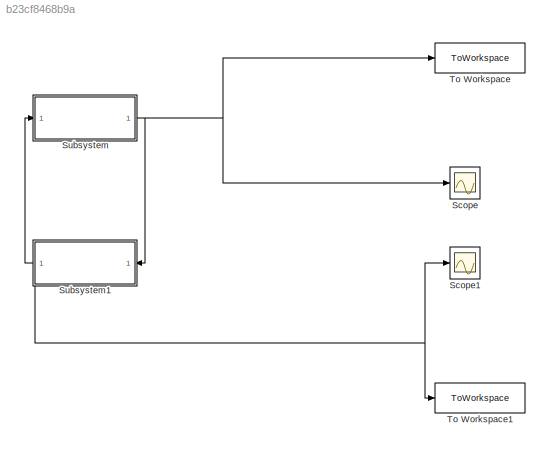
MODEL slx_b23cf8468b9a
KIND model
CONFIG AbsTol = auto
CONFIG EnableMultiTasking = off
CONFIG FixedStep = auto
CONFIG MaxStep = auto
CONFIG MinStep = auto
CONFIG RelTol = 1e-3
CONFIG SampleTimeConstraint = Unconstrained
CONFIG SolverName = VariableStepAuto
CONFIG StartTime = 0.0
CONFIG StopTime = 10.0
BLOCK [Scope] Scope
  Floating = off
  NumInputPorts = 1
  Ports = [1]
  ScopeSpecificationString = Simulink.scopes.TimeScopeBlockCfg('CurrentConfiguration', extmgr.ConfigurationSet(extmgr.Configuration('Core','General UI',true),extmgr.Configuration('Core','Source UI',true),extmgr.Configuration('Sources','WiredSimulink',true),extmgr.Configuration('Visuals','Time Domain',true,'SerializedDisplays',{struct('MinYLimReal','-0.17819','MaxYLimReal','0.19433','YLabelReal','','MinYLimMag','0.00000','MaxY...<+1396ch>
BLOCK [Scope] Scope1
  Floating = off
  NumInputPorts = 1
  Ports = [1]
  ScopeSpecificationString = Simulink.scopes.TimeScopeBlockCfg('CurrentConfiguration', extmgr.ConfigurationSet(extmgr.Configuration('Core','General UI',true),extmgr.Configuration('Core','Source UI',true),extmgr.Configuration('Sources','WiredSimulink',true,'DataLoggingVariableName','ScopeData1'),extmgr.Configuration('Visuals','Time Domain',true),extmgr.Configuration('Tools','Plot Navigation',true),extmgr.Configuration('Tools',...<+40ch>
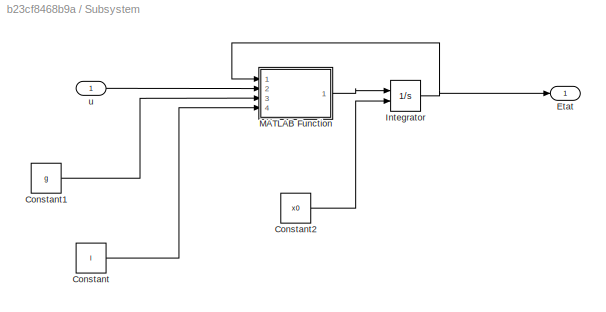
BLOCK [SubSystem] Subsystem
  Ports = [1, 1]
  RequestExecContextInheritance = off
BLOCK [Constant] Subsystem/Constant
  Value = l
BLOCK [Constant] Subsystem/Constant1
  Value = g
BLOCK [Constant] Subsystem/Constant2
  Value = x0
BLOCK [Outport] Subsystem/Etat
BLOCK [Integrator] Subsystem/Integrator
  InitialConditionSource = external
  Ports = [2, 1]
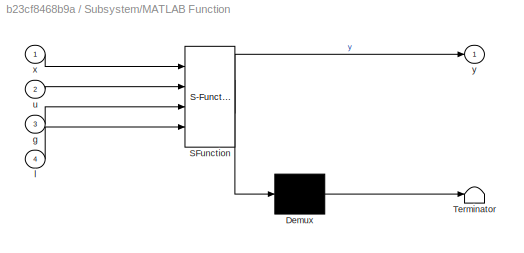
BLOCK [SubSystem] Subsystem/MATLAB Function
  ErrorFcn = Stateflow.Translate.translate
  PermitHierarchicalResolution = ExplicitOnly
  Ports = [4, 1]
  RequestExecContextInheritance = off
  SFBlockType = MATLAB Function
  TreatAsAtomicUnit = on
BLOCK [Demux] Subsystem/MATLAB Function/ Demux 
  Outputs = 1
  Ports = [1, 1]
BLOCK [S-Function] Subsystem/MATLAB Function/ SFunction 
  EnableBusSupport = on
  FunctionName = sf_sfun
  PortCounts = [4 2]
  Ports = [4, 2]
  SFcnIsStateOwnerBlock = off
  SFunctionDeploymentMode = off
  Tag = Stateflow S-Function 2
BLOCK [Terminator] Subsystem/MATLAB Function/ Terminator 
BLOCK [Inport] Subsystem/MATLAB Function/g
  Port = 3
BLOCK [Inport] Subsystem/MATLAB Function/l
  Port = 4
BLOCK [Inport] Subsystem/MATLAB Function/u
  Port = 2
BLOCK [Inport] Subsystem/MATLAB Function/x
BLOCK [Outport] Subsystem/MATLAB Function/y
BLOCK [Inport] Subsystem/u
  NameLocation = left
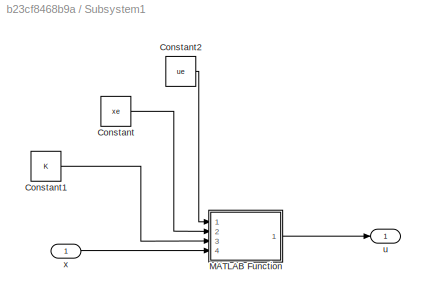
BLOCK [SubSystem] Subsystem1
  Ports = [1, 1]
  RequestExecContextInheritance = off
BLOCK [Constant] Subsystem1/Constant
  Value = xe
BLOCK [Constant] Subsystem1/Constant1
  Value = K
BLOCK [Constant] Subsystem1/Constant2
  Value = ue
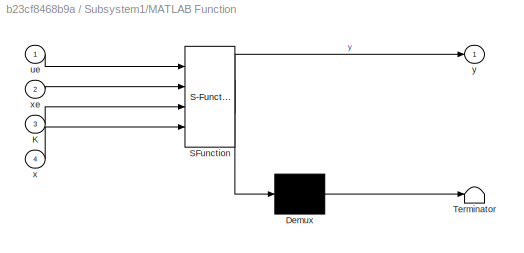
BLOCK [SubSystem] Subsystem1/MATLAB Function
  ErrorFcn = Stateflow.Translate.translate
  PermitHierarchicalResolution = ExplicitOnly
  Ports = [4, 1]
  RequestExecContextInheritance = off
  SFBlockType = MATLAB Function
  TreatAsAtomicUnit = on
BLOCK [Demux] Subsystem1/MATLAB Function/ Demux 
  Outputs = 1
  Ports = [1, 1]
BLOCK [S-Function] Subsystem1/MATLAB Function/ SFunction 
  EnableBusSupport = on
  FunctionName = sf_sfun
  PortCounts = [4 2]
  Ports = [4, 2]
  SFcnIsStateOwnerBlock = off
  SFunctionDeploymentMode = off
  Tag = Stateflow S-Function 1
BLOCK [Terminator] Subsystem1/MATLAB Function/ Terminator 
BLOCK [Inport] Subsystem1/MATLAB Function/K
  Port = 3
BLOCK [Inport] Subsystem1/MATLAB Function/ue
BLOCK [Inport] Subsystem1/MATLAB Function/x
  Port = 4
BLOCK [Inport] Subsystem1/MATLAB Function/xe
  Port = 2
BLOCK [Outport] Subsystem1/MATLAB Function/y
BLOCK [Outport] Subsystem1/u
BLOCK [Inport] Subsystem1/x
BLOCK [ToWorkspace] To Workspace
  FixptAsFi = on
  MaxDataPoints = inf
  Ports = [1]
  SampleTime = -1
  SaveFormat = Timeseries
  VariableName = X
BLOCK [ToWorkspace] To Workspace1
  FixptAsFi = on
  MaxDataPoints = inf
  Ports = [1]
  SampleTime = -1
  SaveFormat = Timeseries
  VariableName = U
LINE Subsystem/Constant1:1 -> Subsystem/MATLAB Function:3
LINE Subsystem/Constant2:1 -> Subsystem/Integrator:2
LINE Subsystem/Constant:1 -> Subsystem/MATLAB Function:4
NET Subsystem/Integrator:1 -> Subsystem/Etat:1, Subsystem/MATLAB Function:1
LINE Subsystem/MATLAB Function:1 -> Subsystem/Integrator:1
LINE Subsystem/u:1 -> Subsystem/MATLAB Function:2
LINE Subsystem1/Constant1:1 -> Subsystem1/MATLAB Function:3
LINE Subsystem1/Constant2:1 -> Subsystem1/MATLAB Function:1
LINE Subsystem1/Constant:1 -> Subsystem1/MATLAB Function:2
LINE Subsystem1/MATLAB Function:1 -> Subsystem1/u:1
LINE Subsystem1/x:1 -> Subsystem1/MATLAB Function:4
NET Subsystem1:1 -> Scope1:1, Subsystem:1, To Workspace1:1
NET Subsystem:1 -> Scope:1, Subsystem1:1, To Workspace:1
note: NET lines group one-source signal fan-out (src -> all destinations, sorted); 1:1 wires keep LINE
CHART Subsystem1/MATLAB Function states=1 transitions=1
  STATE_LABEL 'eML_blk_kernel()'
  STATE_LABEL 'SCRIPT:\nfunction y = fcn(ue,xe,K,x)\ny = ue+K(1)*(x(1)-xe(1)) + K(2)*(x(2)-xe(2));\nend'
CHART Subsystem/MATLAB Function states=1 transitions=1
  STATE_LABEL 'eML_blk_kernel()'
  STATE_LABEL "SCRIPT:\nfunction y = fcn(x,u,g,l)\ny = [x(2), g/l*sin(x(1))-u*cos(x(1))/l]';\nend"
CHART  states=0 transitions=0
CHART  states=0 transitions=0
